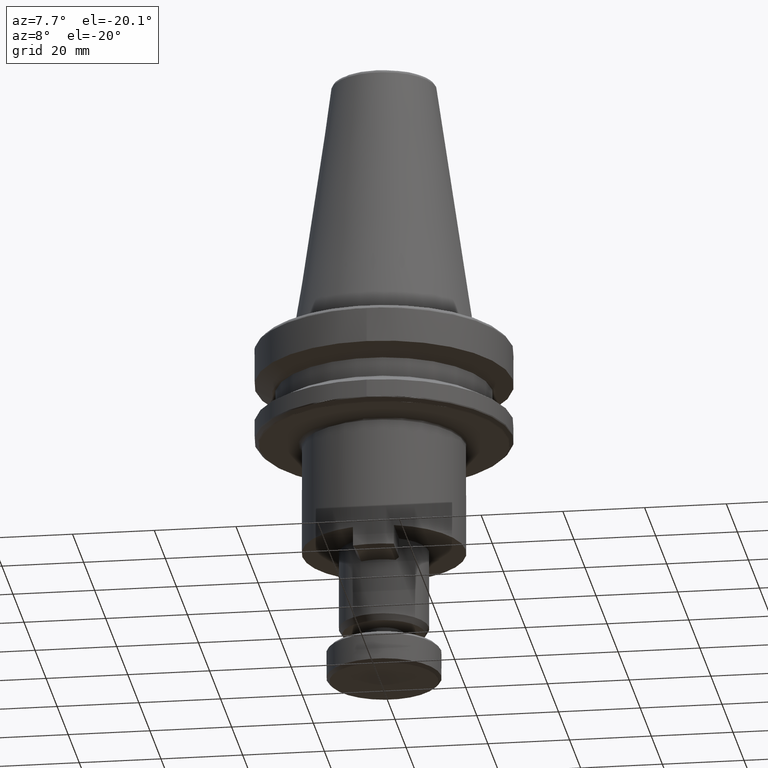
[diagram: clean part render]
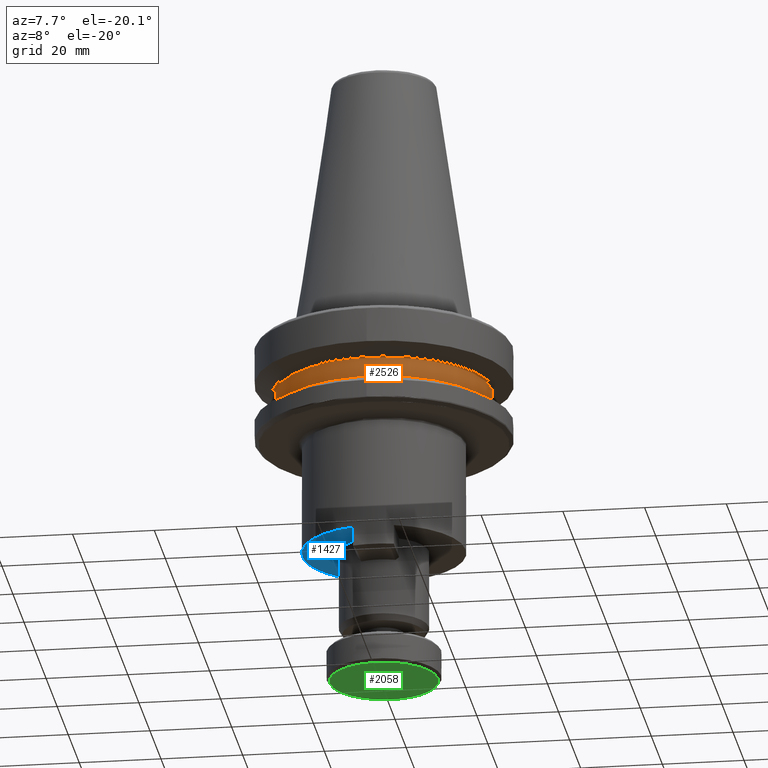
[diagram: same view with three faces highlighted in distinct colors, each labeled with its STEP entity id]
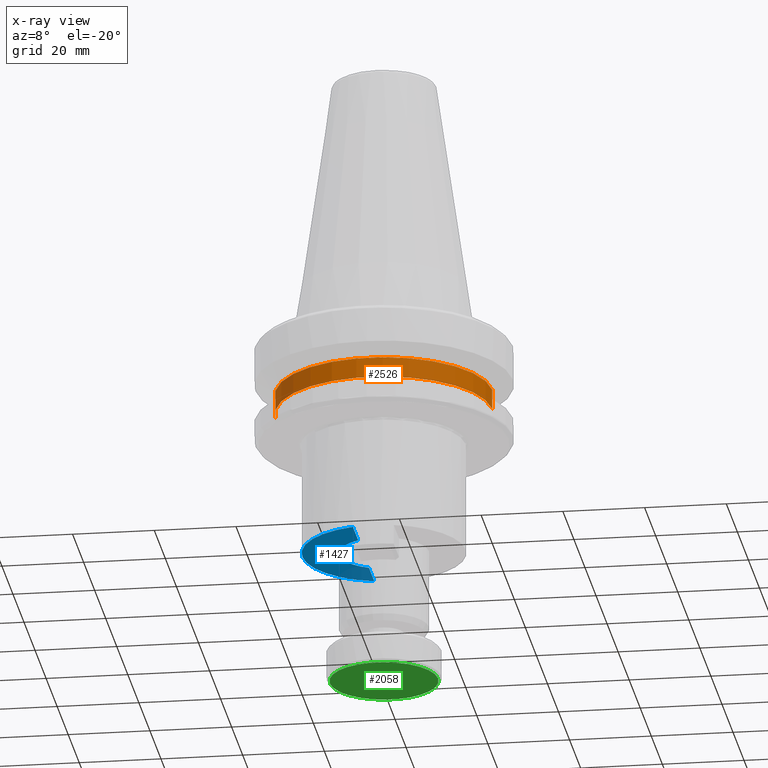
[diagram: x-ray of the same camera — body ghosted, the three highlighted faces saturated]
A machine part, auxiliary view with three faces highlighted in distinct colors.
The next image is the same camera in x-ray (body ghosted, the three faces saturated) — at least one of them is partly hidden behind the body in this view.
Their STEP definitions:

[orange] entity #2526 — the highlighted cylindrical surface (partial cylindrical patch) has radius 26.5 mm, axis along (0, 0, 1).
#35 = CARTESIAN_POINT ( 'NONE',  ( 0.0000000000000000000, 0.0000000000000000000, -38.54423752521513100 ) ) ;
#50 = CARTESIAN_POINT ( 'NONE',  ( -26.50000000000000000, 3.245314017740485800E-015, -38.54423752521513800 ) ) ;
#83 = DIRECTION ( 'NONE',  ( 0.0000000000000000000, 0.0000000000000000000, 1.000000000000000000 ) ) ;
#188 = AXIS2_PLACEMENT_3D ( 'NONE', #2823, #891, #2546 ) ;
#268 = CIRCLE ( 'NONE', #188, 26.50000000000000000 ) ;
#315 = VERTEX_POINT ( 'NONE', #1863 ) ;
#778 = CARTESIAN_POINT ( 'NONE',  ( 0.0000000000000000000, 0.0000000000000000000, -38.54423752521513800 ) ) ;
#787 = EDGE_CURVE ( 'NONE', #1901, #2758, #268, .T. ) ;
#891 = DIRECTION ( 'NONE',  ( 0.0000000000000000000, 0.0000000000000000000, 1.000000000000000000 ) ) ;
#910 = LINE ( 'NONE', #3272, #1645 ) ;
#1113 = VERTEX_POINT ( 'NONE', #50 ) ;
#1115 = ORIENTED_EDGE ( 'NONE', *, *, #787, .F. ) ;
#1352 = EDGE_CURVE ( 'NONE', #1113, #1901, #910, .T. ) ;
#1567 = EDGE_CURVE ( 'NONE', #315, #1113, #1942, .T. ) ;
#1609 = DIRECTION ( 'NONE',  ( 1.000000000000000000, 0.0000000000000000000, 0.0000000000000000000 ) ) ;
#1619 = DIRECTION ( 'NONE',  ( -0.0000000000000000000, -0.0000000000000000000, -1.000000000000000000 ) ) ;
#1645 = VECTOR ( 'NONE', #2785, 1000.000000000000000 ) ;
#1712 = CARTESIAN_POINT ( 'NONE',  ( -26.50000000000000000, 3.245314017740485800E-015, -33.54423752521513100 ) ) ;
#1828 = EDGE_CURVE ( 'NONE', #315, #2758, #2419, .T. ) ;
#1863 = CARTESIAN_POINT ( 'NONE',  ( 26.50000000000000000, 0.0000000000000000000, -38.54423752521513800 ) ) ;
#1873 = AXIS2_PLACEMENT_3D ( 'NONE', #778, #1619, #1609 ) ;
#1901 = VERTEX_POINT ( 'NONE', #1712 ) ;
#1942 = CIRCLE ( 'NONE', #1873, 26.50000000000000000 ) ;
#2117 = ORIENTED_EDGE ( 'NONE', *, *, #1352, .F. ) ;
#2165 = CARTESIAN_POINT ( 'NONE',  ( 26.50000000000000000, 0.0000000000000000000, -33.54423752521513100 ) ) ;
#2249 = FACE_OUTER_BOUND ( 'NONE', #3373, .T. ) ;
#2419 = LINE ( 'NONE', #3399, #3117 ) ;
#2526 = ADVANCED_FACE ( 'NONE', ( #2249 ), #2626, .T. ) ;
#2546 = DIRECTION ( 'NONE',  ( 1.000000000000000000, 0.0000000000000000000, 0.0000000000000000000 ) ) ;
#2594 = DIRECTION ( 'NONE',  ( 0.0000000000000000000, 0.0000000000000000000, 1.000000000000000000 ) ) ;
#2626 = CYLINDRICAL_SURFACE ( 'NONE', #2662, 26.50000000000000000 ) ;
#2662 = AXIS2_PLACEMENT_3D ( 'NONE', #35, #83, #3167 ) ;
#2758 = VERTEX_POINT ( 'NONE', #2165 ) ;
#2785 = DIRECTION ( 'NONE',  ( 0.0000000000000000000, 0.0000000000000000000, 1.000000000000000000 ) ) ;
#2823 = CARTESIAN_POINT ( 'NONE',  ( 0.0000000000000000000, 0.0000000000000000000, -33.54423752521513100 ) ) ;
#3117 = VECTOR ( 'NONE', #2594, 1000.000000000000000 ) ;
#3167 = DIRECTION ( 'NONE',  ( 1.000000000000000000, 0.0000000000000000000, 0.0000000000000000000 ) ) ;
#3173 = ORIENTED_EDGE ( 'NONE', *, *, #1828, .T. ) ;
#3272 = CARTESIAN_POINT ( 'NONE',  ( -26.50000000000000000, 3.245314017740485800E-015, -38.54423752521513100 ) ) ;
#3373 = EDGE_LOOP ( 'NONE', ( #2117, #3491, #3173, #1115 ) ) ;
#3399 = CARTESIAN_POINT ( 'NONE',  ( 26.50000000000000000, 0.0000000000000000000, -38.54423752521513100 ) ) ;
#3491 = ORIENTED_EDGE ( 'NONE', *, *, #1567, .F. ) ;

[blue] entity #1427 — the highlighted planar face has unit normal (0, 0, 1).
#37 = VERTEX_POINT ( 'NONE', #3206 ) ;
#76 = CARTESIAN_POINT ( 'NONE',  ( 0.0000000000000000000, 0.0000000000000000000, -74.44423752041512900 ) ) ;
#110 = VERTEX_POINT ( 'NONE', #3406 ) ;
#204 = CARTESIAN_POINT ( 'NONE',  ( 0.0000000000000000000, 0.0000000000000000000, -74.44423752521512900 ) ) ;
#280 = LINE ( 'NONE', #868, #3073 ) ;
#318 = EDGE_CURVE ( 'NONE', #1922, #1763, #1804, .T. ) ;
#373 = EDGE_CURVE ( 'NONE', #110, #1922, #3157, .T. ) ;
#447 = CARTESIAN_POINT ( 'NONE',  ( 0.0000000000000000000, 0.0000000000000000000, -74.44423752041512900 ) ) ;
#472 = CARTESIAN_POINT ( 'NONE',  ( -5.000000000000000000, 0.0000000000000000000, -74.44423752521512900 ) ) ;
#654 = DIRECTION ( 'NONE',  ( 1.000000000000000000, 8.881784197001252300E-016, 0.0000000000000000000 ) ) ;
#718 = CARTESIAN_POINT ( 'NONE',  ( 5.000000000000000000, -19.59729573200000300, -74.44423752521512900 ) ) ;
#777 = AXIS2_PLACEMENT_3D ( 'NONE', #718, #3160, #979 ) ;
#826 = EDGE_LOOP ( 'NONE', ( #1547, #1781, #1221, #1291, #1205, #2017 ) ) ;
#868 = CARTESIAN_POINT ( 'NONE',  ( -5.000000000000000000, -14.58143785100000000, -74.44423752521512900 ) ) ;
#883 = DIRECTION ( 'NONE',  ( -0.0000000000000000000, -1.000000000000000000, -0.0000000000000000000 ) ) ;
#979 = DIRECTION ( 'NONE',  ( 1.000000000000000000, 0.0000000000000000000, 0.0000000000000000000 ) ) ;
#1029 = VERTEX_POINT ( 'NONE', #2183 ) ;
#1046 = DIRECTION ( 'NONE',  ( -0.0000000000000000000, -0.0000000000000000000, -1.000000000000000000 ) ) ;
#1067 = CARTESIAN_POINT ( 'NONE',  ( -20.00000000000000000, 2.449293598294706500E-015, -74.44423752041512900 ) ) ;
#1085 = LINE ( 'NONE', #472, #3171 ) ;
#1103 = DIRECTION ( 'NONE',  ( -0.0000000000000000000, -0.0000000000000000000, -1.000000000000000000 ) ) ;
#1157 = EDGE_CURVE ( 'NONE', #1029, #37, #3105, .T. ) ;
#1203 = EDGE_CURVE ( 'NONE', #3390, #1029, #1268, .T. ) ;
#1205 = ORIENTED_EDGE ( 'NONE', *, *, #2212, .T. ) ;
#1221 = ORIENTED_EDGE ( 'NONE', *, *, #373, .T. ) ;
#1268 = CIRCLE ( 'NONE', #1363, 11.00000000000000000 ) ;
#1291 = ORIENTED_EDGE ( 'NONE', *, *, #318, .T. ) ;
#1363 = AXIS2_PLACEMENT_3D ( 'NONE', #204, #1832, #3465 ) ;
#1427 = ADVANCED_FACE ( 'NONE', ( #2130 ), #3325, .F. ) ;
#1547 = ORIENTED_EDGE ( 'NONE', *, *, #1203, .F. ) ;
#1679 = DIRECTION ( 'NONE',  ( 1.000000000000000000, 8.881784197001252300E-016, 0.0000000000000000000 ) ) ;
#1763 = VERTEX_POINT ( 'NONE', #2420 ) ;
#1781 = ORIENTED_EDGE ( 'NONE', *, *, #2270, .T. ) ;
#1804 = CIRCLE ( 'NONE', #2107, 20.00000000000000000 ) ;
#1832 = DIRECTION ( 'NONE',  ( -0.0000000000000000000, -0.0000000000000000000, -1.000000000000000000 ) ) ;
#1922 = VERTEX_POINT ( 'NONE', #1067 ) ;
#2017 = ORIENTED_EDGE ( 'NONE', *, *, #1157, .F. ) ;
#2107 = AXIS2_PLACEMENT_3D ( 'NONE', #447, #1046, #654 ) ;
#2130 = FACE_OUTER_BOUND ( 'NONE', #826, .T. ) ;
#2183 = CARTESIAN_POINT ( 'NONE',  ( -11.00000000000000000, 1.347111479062088400E-015, -74.44423752521512900 ) ) ;
#2212 = EDGE_CURVE ( 'NONE', #1763, #37, #1085, .T. ) ;
#2213 = DIRECTION ( 'NONE',  ( -0.0000000000000000000, -0.0000000000000000000, -1.000000000000000000 ) ) ;
#2270 = EDGE_CURVE ( 'NONE', #3390, #110, #280, .T. ) ;
#2420 = CARTESIAN_POINT ( 'NONE',  ( -5.000000000305115900, 19.36491673087952100, -74.44423752281512900 ) ) ;
#2660 = DIRECTION ( 'NONE',  ( -0.0000000000000000000, -1.000000000000000000, -0.0000000000000000000 ) ) ;
#2664 = AXIS2_PLACEMENT_3D ( 'NONE', #76, #2213, #1679 ) ;
#2752 = DIRECTION ( 'NONE',  ( 1.000000000000000000, -1.776356839400250500E-015, 0.0000000000000000000 ) ) ;
#2894 = AXIS2_PLACEMENT_3D ( 'NONE', #3010, #1103, #2752 ) ;
#3010 = CARTESIAN_POINT ( 'NONE',  ( 0.0000000000000000000, 0.0000000000000000000, -74.44423752521512900 ) ) ;
#3054 = CARTESIAN_POINT ( 'NONE',  ( -5.000000000000000000, -9.797958971132711500, -74.44423752281512900 ) ) ;
#3073 = VECTOR ( 'NONE', #883, 1000.000000000000000 ) ;
#3105 = CIRCLE ( 'NONE', #2894, 11.00000000000000000 ) ;
#3157 = CIRCLE ( 'NONE', #2664, 20.00000000000000000 ) ;
#3160 = DIRECTION ( 'NONE',  ( 0.0000000000000000000, 0.0000000000000000000, 1.000000000000000000 ) ) ;
#3171 = VECTOR ( 'NONE', #2660, 1000.000000000000000 ) ;
#3206 = CARTESIAN_POINT ( 'NONE',  ( -4.999999999779692700, 9.797958971245137100, -74.44423752281512900 ) ) ;
#3325 = PLANE ( 'NONE',  #777 ) ;
#3390 = VERTEX_POINT ( 'NONE', #3054 ) ;
#3406 = CARTESIAN_POINT ( 'NONE',  ( -5.000000000000000000, -19.36491673101854300, -74.44423752281512900 ) ) ;
#3465 = DIRECTION ( 'NONE',  ( 1.000000000000000000, 0.0000000000000000000, 0.0000000000000000000 ) ) ;

[green] entity #2058 — the highlighted planar face has unit normal (0, 0, -1).
#785 = CARTESIAN_POINT ( 'NONE',  ( 0.0000000000000000000, 0.0000000000000000000, -107.4442375252150900 ) ) ;
#974 = DIRECTION ( 'NONE',  ( 1.000000000000000000, 0.0000000000000000000, 0.0000000000000000000 ) ) ;
#1257 = CARTESIAN_POINT ( 'NONE',  ( -13.25000000000003400, 1.668581263838270700E-015, -107.4442375252150900 ) ) ;
#1261 = ORIENTED_EDGE ( 'NONE', *, *, #1293, .T. ) ;
#1293 = EDGE_CURVE ( 'NONE', #3360, #1640, #2380, .T. ) ;
#1298 = CARTESIAN_POINT ( 'NONE',  ( 0.0000000000000000000, 0.0000000000000000000, -107.4442375252150900 ) ) ;
#1425 = DIRECTION ( 'NONE',  ( -0.0000000000000000000, -0.0000000000000000000, -1.000000000000000000 ) ) ;
#1508 = AXIS2_PLACEMENT_3D ( 'NONE', #1298, #1792, #974 ) ;
#1569 = CIRCLE ( 'NONE', #1508, 13.25000000000003400 ) ;
#1640 = VERTEX_POINT ( 'NONE', #2170 ) ;
#1792 = DIRECTION ( 'NONE',  ( -0.0000000000000000000, -0.0000000000000000000, -1.000000000000000000 ) ) ;
#2058 = ADVANCED_FACE ( 'NONE', ( #3427 ), #2985, .T. ) ;
#2086 = DIRECTION ( 'NONE',  ( 0.0000000000000000000, 0.0000000000000000000, -1.000000000000000000 ) ) ;
#2170 = CARTESIAN_POINT ( 'NONE',  ( 13.25000000000003400, 0.0000000000000000000, -107.4442375252150900 ) ) ;
#2186 = AXIS2_PLACEMENT_3D ( 'NONE', #2348, #2086, #3531 ) ;
#2205 = EDGE_LOOP ( 'NONE', ( #2272, #1261 ) ) ;
#2272 = ORIENTED_EDGE ( 'NONE', *, *, #3281, .T. ) ;
#2348 = CARTESIAN_POINT ( 'NONE',  ( 13.40900000000000100, -13.40900000000000100, -107.4442375252151200 ) ) ;
#2380 = CIRCLE ( 'NONE', #2828, 13.25000000000003400 ) ;
#2828 = AXIS2_PLACEMENT_3D ( 'NONE', #785, #1425, #3031 ) ;
#2985 = PLANE ( 'NONE',  #2186 ) ;
#3031 = DIRECTION ( 'NONE',  ( 1.000000000000000000, 0.0000000000000000000, 0.0000000000000000000 ) ) ;
#3281 = EDGE_CURVE ( 'NONE', #1640, #3360, #1569, .T. ) ;
#3360 = VERTEX_POINT ( 'NONE', #1257 ) ;
#3427 = FACE_OUTER_BOUND ( 'NONE', #2205, .T. ) ;
#3531 = DIRECTION ( 'NONE',  ( -1.000000000000000000, 0.0000000000000000000, 0.0000000000000000000 ) ) ;